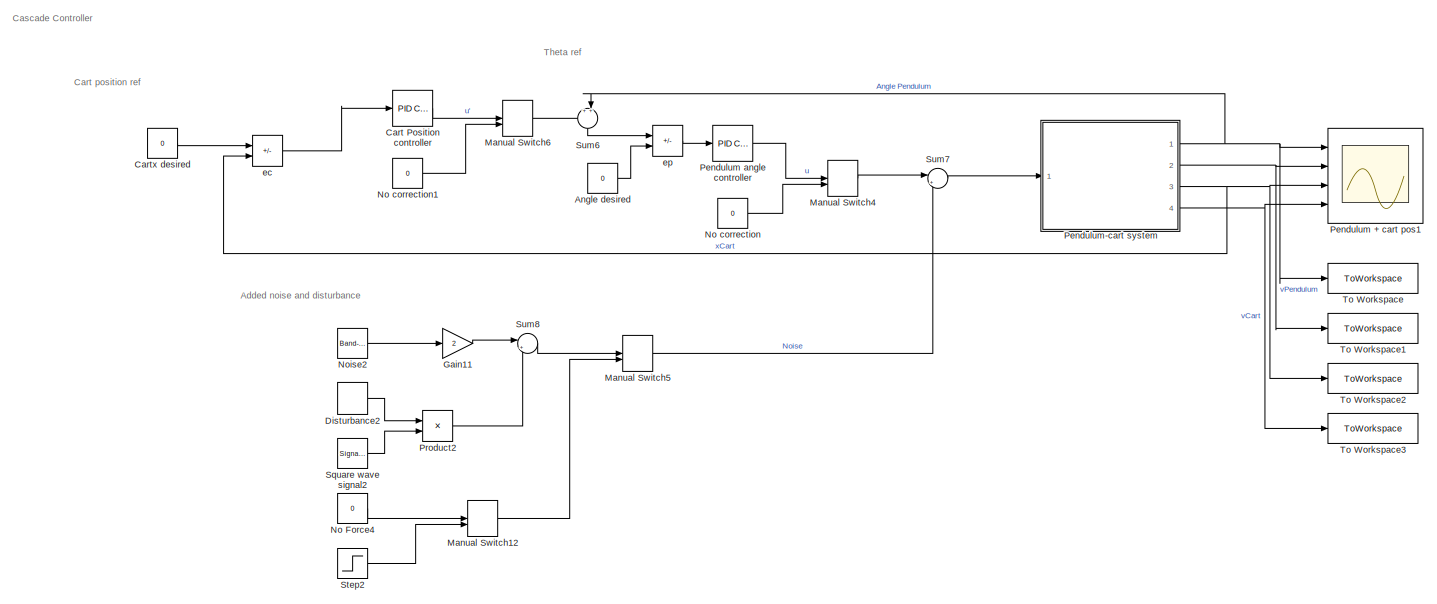
[diagram: root canvas - part 1/3, full width, top band]
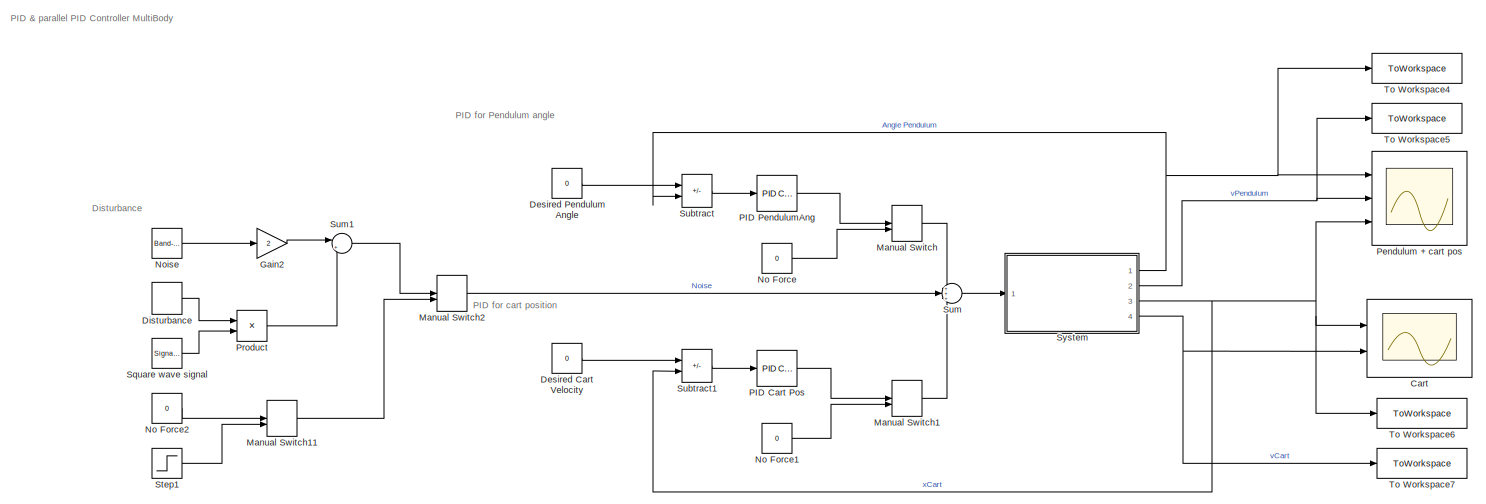
[diagram: root canvas - part 2/3, full width, middle band]
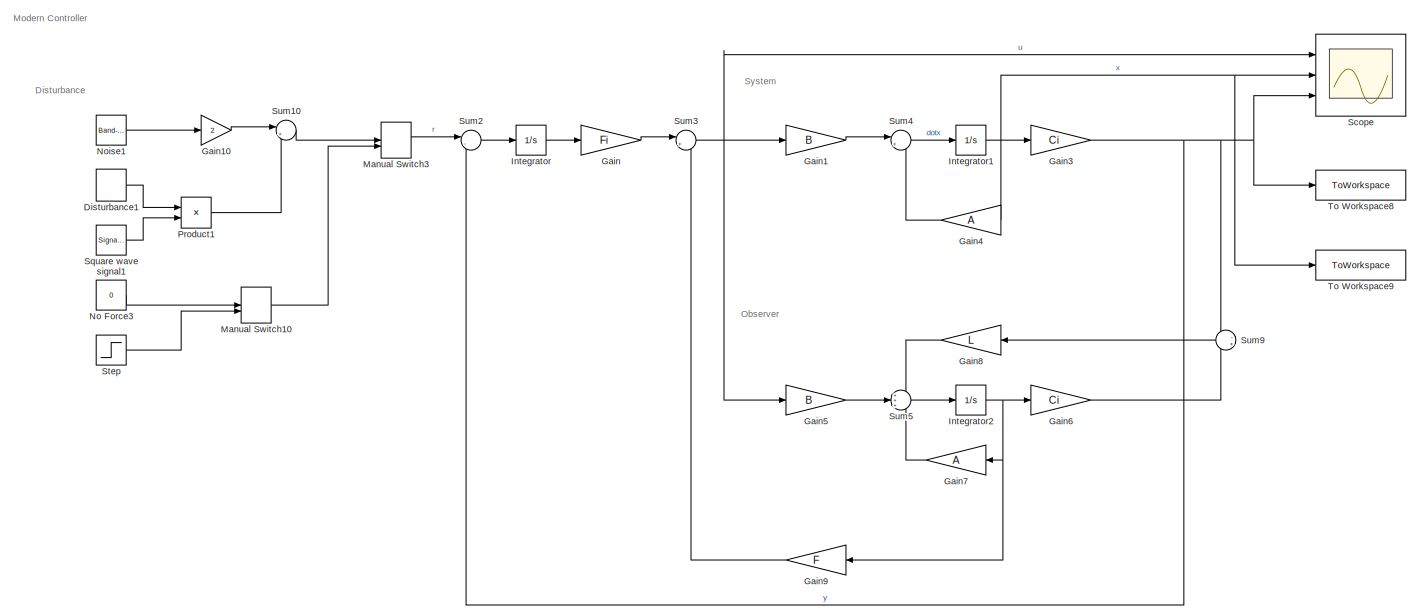
[diagram: root canvas - part 3/3, full width, bottom band]
MODEL slx_d659be072159
KIND model
CONFIG AbsTol = 1e-3
CONFIG EnableMultiTasking = on
CONFIG FixedStep = 0.001
CONFIG MaxStep = auto
CONFIG MinStep = auto
CONFIG RelTol = 1e-3
CONFIG SampleTimeConstraint = Unconstrained
CONFIG SolverName = VariableStepAuto
CONFIG StartTime = 0.0
CONFIG StopTime = 15.0
BLOCK [Constant] Angle desired
  Value = 0
BLOCK [Scope] Cart
  Floating = off
  NumInputPorts = 2
  Ports = [2]
  ScopeSpecificationString = Simulink.scopes.TimeScopeBlockCfg('CurrentConfiguration', extmgr.ConfigurationSet(extmgr.Configuration('Core','General UI',true),extmgr.Configuration('Core','Source UI',true),extmgr.Configuration('Sources','WiredSimulink',true,'DataLoggingVariableName','ScopeData1'),extmgr.Configuration('Visuals','Time Domain',true,'SerializedDisplays',{struct('MinYLimReal','-0.0064','MaxYLimReal','0.00664','YLabe...<+2069ch>
BLOCK [Reference] Cart Position controller  REF=slpidlib/PID Controller
  Ports = [1, 1]
  SourceBlock = slpidlib/PID Controller
  SourceProductBaseCode = SL
  SourceType = PID 1dof
BLOCK [Constant] Cartx desired
  Value = 0
BLOCK [Constant] Desired Cart Velocity
  Value = 0
BLOCK [Constant] Desired Pendulum Angle
  Value = 0
BLOCK [DiscretePulseGenerator] Disturbance
  Amplitude = 10000
  Period = 1
  PhaseDelay = 1
  Ports = [0, 1]
  PulseType = Time based
  PulseWidth = 0.001
BLOCK [DiscretePulseGenerator] Disturbance1
  Amplitude = 10000
  Period = 1
  PhaseDelay = 1
  Ports = [0, 1]
  PulseType = Time based
  PulseWidth = 0.001
BLOCK [DiscretePulseGenerator] Disturbance2
  Amplitude = 10000
  Period = 1
  PhaseDelay = 1
  Ports = [0, 1]
  PulseType = Time based
  PulseWidth = 0.001
BLOCK [Gain] Gain
  Gain = Fi
  Multiplication = Matrix(K*u) (u vector)
BLOCK [Gain] Gain1
  Gain = B
  Multiplication = Matrix(K*u) (u vector)
BLOCK [Gain] Gain10
  Gain = 2
BLOCK [Gain] Gain11
  Gain = 2
BLOCK [Gain] Gain2
  Gain = 2
BLOCK [Gain] Gain3
  Gain = Ci
  Multiplication = Matrix(K*u) (u vector)
BLOCK [Gain] Gain4
  Gain = A
  Multiplication = Matrix(K*u) (u vector)
BLOCK [Gain] Gain5
  Gain = B
  Multiplication = Matrix(K*u) (u vector)
BLOCK [Gain] Gain6
  Gain = Ci
  Multiplication = Matrix(K*u) (u vector)
BLOCK [Gain] Gain7
  Gain = A
  Multiplication = Matrix(K*u) (u vector)
BLOCK [Gain] Gain8
  Gain = L
  Multiplication = Matrix(K*u) (u vector)
BLOCK [Gain] Gain9
  Gain = F
  Multiplication = Matrix(K*u) (u vector)
BLOCK [Integrator] Integrator
  Ports = [1, 1]
BLOCK [Integrator] Integrator1
  InitialCondition = [0;0;pi/64;0]
  Ports = [1, 1]
BLOCK [Integrator] Integrator2
  Ports = [1, 1]
BLOCK [ManualSwitch] Manual Switch
BLOCK [ManualSwitch] Manual Switch1
BLOCK [ManualSwitch] Manual Switch10
  CurrentSetting = 0
BLOCK [ManualSwitch] Manual Switch11
  CurrentSetting = 0
BLOCK [ManualSwitch] Manual Switch12
  CurrentSetting = 0
BLOCK [ManualSwitch] Manual Switch2
BLOCK [ManualSwitch] Manual Switch3
BLOCK [ManualSwitch] Manual Switch4
BLOCK [ManualSwitch] Manual Switch5
BLOCK [ManualSwitch] Manual Switch6
BLOCK [Constant] No Force
  Value = 0
BLOCK [Constant] No Force1
  Value = 0
BLOCK [Constant] No Force2
  Value = 0
BLOCK [Constant] No Force3
  Value = 0
BLOCK [Constant] No Force4
  Value = 0
BLOCK [Constant] No correction
  Value = 0
BLOCK [Constant] No correction1
  Value = 0
BLOCK [Reference] Noise  REF=simulink/Sources/Band-Limited
White Noise
  Ports = [0, 1]
  SourceBlock = simulink/Sources/Band-Limited\nWhite Noise
  SourceProductBaseCode = SL
  SourceType = Band-Limited White Noise.
BLOCK [Reference] Noise1  REF=simulink/Sources/Band-Limited
White Noise
  Ports = [0, 1]
  SourceBlock = simulink/Sources/Band-Limited\nWhite Noise
  SourceProductBaseCode = SL
  SourceType = Band-Limited White Noise.
BLOCK [Reference] Noise2  REF=simulink/Sources/Band-Limited
White Noise
  Ports = [0, 1]
  SourceBlock = simulink/Sources/Band-Limited\nWhite Noise
  SourceProductBaseCode = SL
  SourceType = Band-Limited White Noise.
BLOCK [Reference] PID Cart Pos  REF=slpidlib/PID Controller
  Ports = [1, 1]
  SourceBlock = slpidlib/PID Controller
  SourceProductBaseCode = SL
  SourceType = PID 1dof
BLOCK [Reference] PID PendulumAng  REF=slpidlib/PID Controller
  Ports = [1, 1]
  SourceBlock = slpidlib/PID Controller
  SourceProductBaseCode = SL
  SourceType = PID 1dof
BLOCK [Scope] Pendulum + cart pos
  Floating = off
  NumInputPorts = 3
  Ports = [3]
  ScopeSpecificationString = Simulink.scopes.TimeScopeBlockCfg('CurrentConfiguration', extmgr.ConfigurationSet(extmgr.Configuration('Core','General UI',true),extmgr.Configuration('Core','Source UI',true),extmgr.Configuration('Sources','WiredSimulink',true,'DataLoggingVariableName','ScopeData2'),extmgr.Configuration('Visuals','Time Domain',true,'SerializedDisplays',{struct('MinYLimReal','-0.02425','MaxYLimReal','0.02649','YLab...<+2780ch>
BLOCK [Scope] Pendulum + cart pos1
  Floating = off
  NumInputPorts = 4
  Ports = [4]
  ScopeSpecificationString = Simulink.scopes.TimeScopeBlockCfg('CurrentConfiguration', extmgr.ConfigurationSet(extmgr.Configuration('Core','General UI',true),extmgr.Configuration('Core','Source UI',true),extmgr.Configuration('Sources','WiredSimulink',true,'DataLoggingVariableName','ScopeData1'),extmgr.Configuration('Visuals','Time Domain',true,'SerializedDisplays',{struct('MinYLimReal','-0.01691','MaxYLimReal','0.01799','YLab...<+3404ch>
BLOCK [Reference] Pendulum angle controller  REF=slpidlib/PID Controller
  Ports = [1, 1]
  SourceBlock = slpidlib/PID Controller
  SourceProductBaseCode = SL
  SourceType = PID 1dof
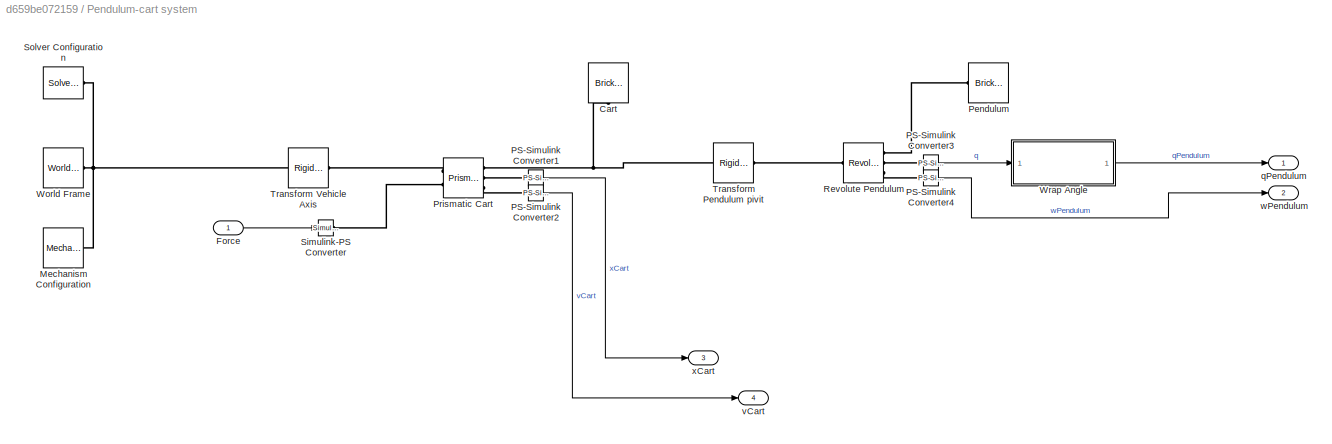
BLOCK [SubSystem] Pendulum-cart system
  Ports = [1, 4]
  RequestExecContextInheritance = off
BLOCK [Reference] Pendulum-cart system/Cart  REF=sm_lib/Body Elements/Brick Solid
  NameLocation = top
  Ports = [0, 0, 0, 0, 0, 0, 1]
  SourceBlock = sm_lib/Body Elements/Brick Solid
  SourceProductBaseCode = MS
  SourceType = Brick Solid
BLOCK [Inport] Pendulum-cart system/Force
BLOCK [Reference] Pendulum-cart system/Mechanism Configuration  REF=sm_lib/Utilities/Mechanism
Configuration
  Ports = [0, 0, 0, 0, 0, 0, 1]
  SourceBlock = sm_lib/Utilities/Mechanism\nConfiguration
  SourceProductBaseCode = MS
  SourceType = Mechanism\nConfiguration
BLOCK [Reference] Pendulum-cart system/PS-Simulink Converter1  REF=nesl_utility/PS-Simulink
Converter
  Ports = [0, 1, 0, 0, 0, 1]
  SourceBlock = nesl_utility/PS-Simulink\nConverter
  SourceProductBaseCode = SS,PW,VE
  SourceType = PS-Simulink\nConverter
BLOCK [Reference] Pendulum-cart system/PS-Simulink Converter2  REF=nesl_utility/PS-Simulink
Converter
  Ports = [0, 1, 0, 0, 0, 1]
  SourceBlock = nesl_utility/PS-Simulink\nConverter
  SourceProductBaseCode = SS,PW,VE
  SourceType = PS-Simulink\nConverter
BLOCK [Reference] Pendulum-cart system/PS-Simulink Converter3  REF=nesl_utility/PS-Simulink
Converter
  Ports = [0, 1, 0, 0, 0, 1]
  SourceBlock = nesl_utility/PS-Simulink\nConverter
  SourceProductBaseCode = SS,PW,VE
  SourceType = PS-Simulink\nConverter
BLOCK [Reference] Pendulum-cart system/PS-Simulink Converter4  REF=nesl_utility/PS-Simulink
Converter
  Ports = [0, 1, 0, 0, 0, 1]
  SourceBlock = nesl_utility/PS-Simulink\nConverter
  SourceProductBaseCode = SS,PW,VE
  SourceType = PS-Simulink\nConverter
BLOCK [Reference] Pendulum-cart system/Pendulum  REF=sm_lib/Body Elements/Brick Solid
  Ports = [0, 0, 0, 0, 0, 1]
  SourceBlock = sm_lib/Body Elements/Brick Solid
  SourceProductBaseCode = MS
  SourceType = Brick Solid
BLOCK [Reference] Pendulum-cart system/Prismatic Cart  REF=sm_lib/Joints/Prismatic
Joint
  Ports = [0, 0, 0, 0, 0, 2, 3]
  SourceBlock = sm_lib/Joints/Prismatic\nJoint
  SourceProductBaseCode = MS
  SourceType = Prismatic\nJoint
BLOCK [Reference] Pendulum-cart system/Revolute Pendulum  REF=sm_lib/Joints/Revolute Joint
  Ports = [0, 0, 0, 0, 0, 1, 3]
  SourceBlock = sm_lib/Joints/Revolute Joint
  SourceProductBaseCode = MS
  SourceType = Revolute Joint
BLOCK [Reference] Pendulum-cart system/Simulink-PS Converter  REF=nesl_utility/Simulink-PS
Converter
  Ports = [1, 0, 0, 0, 0, 0, 1]
  SourceBlock = nesl_utility/Simulink-PS\nConverter
  SourceProductBaseCode = SS,PW,VE
  SourceType = Simulink-PS\nConverter
BLOCK [Reference] Pendulum-cart system/Solver Configuration  REF=nesl_utility/Solver
Configuration
  Ports = [0, 0, 0, 0, 0, 0, 1]
  SourceBlock = nesl_utility/Solver\nConfiguration
  SourceProductBaseCode = SS,PW,VE
  SourceType = Solver\nConfiguration
BLOCK [Reference] Pendulum-cart system/Transform Pendulum pivit  REF=sm_lib/Frames and
Transforms/Rigid
Transform
  Ports = [0, 0, 0, 0, 0, 1, 1]
  SourceBlock = sm_lib/Frames and\nTransforms/Rigid\nTransform
  SourceProductBaseCode = MS
  SourceType = Rigid\nTransform
BLOCK [Reference] Pendulum-cart system/Transform Vehicle Axis  REF=sm_lib/Frames and
Transforms/Rigid
Transform
  Ports = [0, 0, 0, 0, 0, 1, 1]
  SourceBlock = sm_lib/Frames and\nTransforms/Rigid\nTransform
  SourceProductBaseCode = MS
  SourceType = Rigid\nTransform
BLOCK [Reference] Pendulum-cart system/World Frame  REF=sm_lib/Frames and
Transforms/World Frame
  Ports = [0, 0, 0, 0, 0, 0, 1]
  SourceBlock = sm_lib/Frames and\nTransforms/World Frame
  SourceProductBaseCode = MS
  SourceType = World Frame
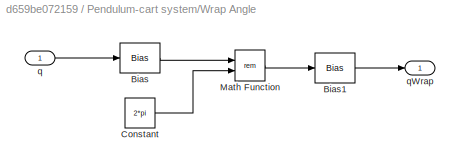
BLOCK [SubSystem] Pendulum-cart system/Wrap Angle
  Ports = [1, 1]
  RequestExecContextInheritance = off
BLOCK [Bias] Pendulum-cart system/Wrap Angle/Bias
  Bias = pi
  SaturateOnIntegerOverflow = off
BLOCK [Bias] Pendulum-cart system/Wrap Angle/Bias1
  Bias = -pi
  SaturateOnIntegerOverflow = off
BLOCK [Constant] Pendulum-cart system/Wrap Angle/Constant
  Value = 2*pi
BLOCK [Math] Pendulum-cart system/Wrap Angle/Math Function
  Operator = rem
  Ports = [2, 1]
BLOCK [Inport] Pendulum-cart system/Wrap Angle/q
BLOCK [Outport] Pendulum-cart system/Wrap Angle/qWrap
BLOCK [Outport] Pendulum-cart system/qPendulum
BLOCK [Outport] Pendulum-cart system/vCart
  Port = 4
BLOCK [Outport] Pendulum-cart system/wPendulum
  Port = 2
BLOCK [Outport] Pendulum-cart system/xCart
  Port = 3
BLOCK [Product] Product
  Ports = [2, 1]
BLOCK [Product] Product1
  Ports = [2, 1]
BLOCK [Product] Product2
  Ports = [2, 1]
BLOCK [Scope] Scope
  Floating = off
  NumInputPorts = 3
  Ports = [3]
  ScopeSpecificationString = Simulink.scopes.TimeScopeBlockCfg('CurrentConfiguration', extmgr.ConfigurationSet(extmgr.Configuration('Core','General UI',true),extmgr.Configuration('Core','Source UI',true),extmgr.Configuration('Sources','WiredSimulink',true,'DataLoggingVariableName','ScopeData1'),extmgr.Configuration('Visuals','Time Domain',true,'SerializedDisplays',{struct('MinYLimReal','-24.426','MaxYLimReal','22.32695','YLab...<+2748ch>
BLOCK [SignalGenerator] Square wave signal
  Frequency = 10
  Ports = [0, 1]
  Units = rad/sec
  WaveForm = square
BLOCK [SignalGenerator] Square wave signal1
  Frequency = 10
  Ports = [0, 1]
  Units = rad/sec
  WaveForm = square
BLOCK [SignalGenerator] Square wave signal2
  Frequency = 10
  Ports = [0, 1]
  Units = rad/sec
  WaveForm = square
BLOCK [Step] Step
  After = 0.1
  SampleTime = 0
BLOCK [Step] Step1
  After = 0.1
  SampleTime = 0
BLOCK [Step] Step2
  After = 0.1
  SampleTime = 0
BLOCK [Sum] Subtract
  IconShape = rectangular
  Inputs = +-
  Ports = [2, 1]
BLOCK [Sum] Subtract1
  IconShape = rectangular
  Inputs = +-
  Ports = [2, 1]
BLOCK [Sum] Sum
  Inputs = +++
  Ports = [3, 1]
BLOCK [Sum] Sum1
  Inputs = |++
  Ports = [2, 1]
BLOCK [Sum] Sum10
  Inputs = |++
  Ports = [2, 1]
BLOCK [Sum] Sum2
  Inputs = |-+
  Ports = [2, 1]
BLOCK [Sum] Sum3
  Inputs = |++
  Ports = [2, 1]
BLOCK [Sum] Sum4
  Inputs = |++
  Ports = [2, 1]
BLOCK [Sum] Sum5
  Inputs = +++
  Ports = [3, 1]
BLOCK [Sum] Sum6
  Inputs = ++|
  NameLocation = left
  Ports = [2, 1]
BLOCK [Sum] Sum7
  Inputs = |++
  Ports = [2, 1]
BLOCK [Sum] Sum8
  Inputs = |++
  Ports = [2, 1]
BLOCK [Sum] Sum9
  Inputs = -+
  Ports = [2, 1]
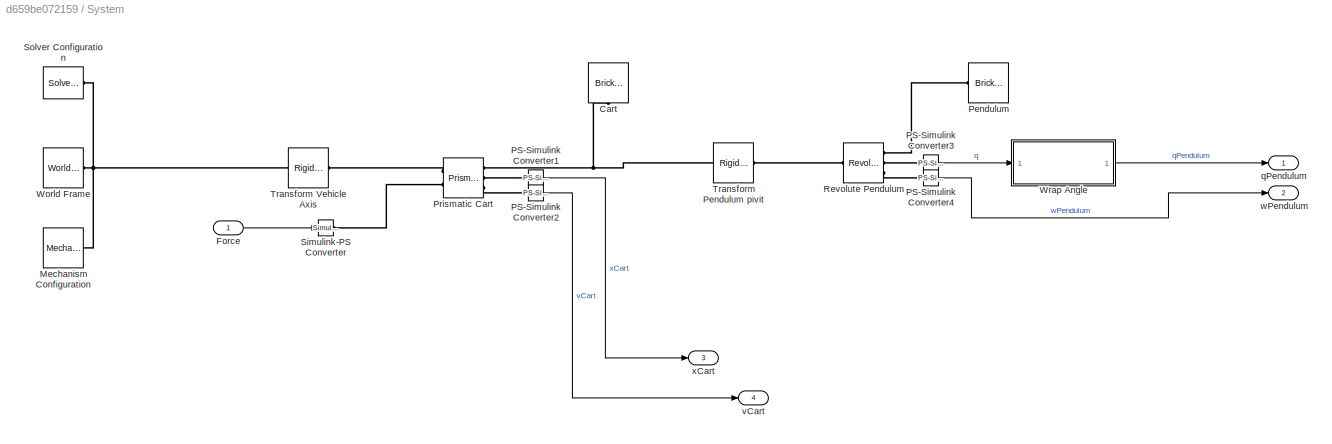
BLOCK [SubSystem] System
  Ports = [1, 4]
  RequestExecContextInheritance = off
BLOCK [Reference] System/Cart  REF=sm_lib/Body Elements/Brick Solid
  NameLocation = top
  Ports = [0, 0, 0, 0, 0, 0, 1]
  SourceBlock = sm_lib/Body Elements/Brick Solid
  SourceProductBaseCode = MS
  SourceType = Brick Solid
BLOCK [Inport] System/Force
BLOCK [Reference] System/Mechanism Configuration  REF=sm_lib/Utilities/Mechanism
Configuration
  Ports = [0, 0, 0, 0, 0, 0, 1]
  SourceBlock = sm_lib/Utilities/Mechanism\nConfiguration
  SourceProductBaseCode = MS
  SourceType = Mechanism\nConfiguration
BLOCK [Reference] System/PS-Simulink Converter1  REF=nesl_utility/PS-Simulink
Converter
  Ports = [0, 1, 0, 0, 0, 1]
  SourceBlock = nesl_utility/PS-Simulink\nConverter
  SourceProductBaseCode = SS,PW,VE
  SourceType = PS-Simulink\nConverter
BLOCK [Reference] System/PS-Simulink Converter2  REF=nesl_utility/PS-Simulink
Converter
  Ports = [0, 1, 0, 0, 0, 1]
  SourceBlock = nesl_utility/PS-Simulink\nConverter
  SourceProductBaseCode = SS,PW,VE
  SourceType = PS-Simulink\nConverter
BLOCK [Reference] System/PS-Simulink Converter3  REF=nesl_utility/PS-Simulink
Converter
  Ports = [0, 1, 0, 0, 0, 1]
  SourceBlock = nesl_utility/PS-Simulink\nConverter
  SourceProductBaseCode = SS,PW,VE
  SourceType = PS-Simulink\nConverter
BLOCK [Reference] System/PS-Simulink Converter4  REF=nesl_utility/PS-Simulink
Converter
  Ports = [0, 1, 0, 0, 0, 1]
  SourceBlock = nesl_utility/PS-Simulink\nConverter
  SourceProductBaseCode = SS,PW,VE
  SourceType = PS-Simulink\nConverter
BLOCK [Reference] System/Pendulum  REF=sm_lib/Body Elements/Brick Solid
  Ports = [0, 0, 0, 0, 0, 1]
  SourceBlock = sm_lib/Body Elements/Brick Solid
  SourceProductBaseCode = MS
  SourceType = Brick Solid
BLOCK [Reference] System/Prismatic Cart  REF=sm_lib/Joints/Prismatic
Joint
  Ports = [0, 0, 0, 0, 0, 2, 3]
  SourceBlock = sm_lib/Joints/Prismatic\nJoint
  SourceProductBaseCode = MS
  SourceType = Prismatic\nJoint
BLOCK [Reference] System/Revolute Pendulum  REF=sm_lib/Joints/Revolute Joint
  Ports = [0, 0, 0, 0, 0, 1, 3]
  SourceBlock = sm_lib/Joints/Revolute Joint
  SourceProductBaseCode = MS
  SourceType = Revolute Joint
BLOCK [Reference] System/Simulink-PS Converter  REF=nesl_utility/Simulink-PS
Converter
  Ports = [1, 0, 0, 0, 0, 0, 1]
  SourceBlock = nesl_utility/Simulink-PS\nConverter
  SourceProductBaseCode = SS,PW,VE
  SourceType = Simulink-PS\nConverter
BLOCK [Reference] System/Solver Configuration  REF=nesl_utility/Solver
Configuration
  Ports = [0, 0, 0, 0, 0, 0, 1]
  SourceBlock = nesl_utility/Solver\nConfiguration
  SourceProductBaseCode = SS,PW,VE
  SourceType = Solver\nConfiguration
BLOCK [Reference] System/Transform Pendulum pivit  REF=sm_lib/Frames and
Transforms/Rigid
Transform
  Ports = [0, 0, 0, 0, 0, 1, 1]
  SourceBlock = sm_lib/Frames and\nTransforms/Rigid\nTransform
  SourceProductBaseCode = MS
  SourceType = Rigid\nTransform
BLOCK [Reference] System/Transform Vehicle Axis  REF=sm_lib/Frames and
Transforms/Rigid
Transform
  Ports = [0, 0, 0, 0, 0, 1, 1]
  SourceBlock = sm_lib/Frames and\nTransforms/Rigid\nTransform
  SourceProductBaseCode = MS
  SourceType = Rigid\nTransform
BLOCK [Reference] System/World Frame  REF=sm_lib/Frames and
Transforms/World Frame
  Ports = [0, 0, 0, 0, 0, 0, 1]
  SourceBlock = sm_lib/Frames and\nTransforms/World Frame
  SourceProductBaseCode = MS
  SourceType = World Frame
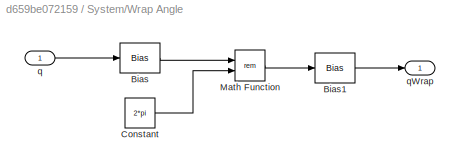
BLOCK [SubSystem] System/Wrap Angle
  Ports = [1, 1]
  RequestExecContextInheritance = off
BLOCK [Bias] System/Wrap Angle/Bias
  Bias = pi
  SaturateOnIntegerOverflow = off
BLOCK [Bias] System/Wrap Angle/Bias1
  Bias = -pi
  SaturateOnIntegerOverflow = off
BLOCK [Constant] System/Wrap Angle/Constant
  Value = 2*pi
BLOCK [Math] System/Wrap Angle/Math Function
  Operator = rem
  Ports = [2, 1]
BLOCK [Inport] System/Wrap Angle/q
BLOCK [Outport] System/Wrap Angle/qWrap
BLOCK [Outport] System/qPendulum
BLOCK [Outport] System/vCart
  Port = 4
BLOCK [Outport] System/wPendulum
  Port = 2
BLOCK [Outport] System/xCart
  Port = 3
BLOCK [ToWorkspace] To Workspace
  FixptAsFi = on
  MaxDataPoints = inf
  Ports = [1]
  SampleTime = -1
  SaveFormat = Timeseries
  VariableName = qcasc
BLOCK [ToWorkspace] To Workspace1
  FixptAsFi = on
  MaxDataPoints = inf
  Ports = [1]
  SampleTime = -1
  SaveFormat = Timeseries
  VariableName = wcasc
BLOCK [ToWorkspace] To Workspace2
  FixptAsFi = on
  MaxDataPoints = inf
  Ports = [1]
  SampleTime = -1
  SaveFormat = Timeseries
  VariableName = xcasc
BLOCK [ToWorkspace] To Workspace3
  FixptAsFi = on
  MaxDataPoints = inf
  Ports = [1]
  SampleTime = -1
  SaveFormat = Timeseries
  VariableName = vcasc
BLOCK [ToWorkspace] To Workspace4
  FixptAsFi = on
  MaxDataPoints = inf
  Ports = [1]
  SampleTime = -1
  SaveFormat = Timeseries
  VariableName = PIDPenAng
BLOCK [ToWorkspace] To Workspace5
  FixptAsFi = on
  MaxDataPoints = inf
  Ports = [1]
  SampleTime = -1
  SaveFormat = Timeseries
  VariableName = PIDPenVel
BLOCK [ToWorkspace] To Workspace6
  FixptAsFi = on
  MaxDataPoints = inf
  Ports = [1]
  SampleTime = -1
  SaveFormat = Timeseries
  VariableName = PIDCartPos
BLOCK [ToWorkspace] To Workspace7
  FixptAsFi = on
  MaxDataPoints = inf
  Ports = [1]
  SampleTime = -1
  SaveFormat = Timeseries
  VariableName = PIDCartVel
BLOCK [ToWorkspace] To Workspace8
  FixptAsFi = on
  MaxDataPoints = inf
  Ports = [1]
  SampleTime = -1
  SaveFormat = Timeseries
  VariableName = ModernControlPenAng
BLOCK [ToWorkspace] To Workspace9
  FixptAsFi = on
  MaxDataPoints = inf
  Ports = [1]
  SampleTime = -1
  SaveFormat = Timeseries
  VariableName = ModernCntrStates
BLOCK [Sum] ec
  IconShape = rectangular
  Inputs = +-
  Ports = [2, 1]
BLOCK [Sum] ep
  IconShape = rectangular
  Inputs = +-
  Ports = [2, 1]
ANNOTATION (root): Added noise and disturbance
ANNOTATION (root): Cart position ref
ANNOTATION (root): Cascade Controller
ANNOTATION (root): Disturbance
ANNOTATION (root): Modern Controller
ANNOTATION (root): Observer
ANNOTATION (root): PID & parallel PID Controller MultiBody
ANNOTATION (root): PID for Pendulum angle
ANNOTATION (root): PID for cart position
ANNOTATION (root): System
ANNOTATION (root): Theta ref
LINE Angle desired:1 -> ep:2
LINE Cart Position controller:1 -> Manual Switch6:1
LINE Cartx desired:1 -> ec:1
LINE Desired Cart Velocity:1 -> Subtract1:1
LINE Desired Pendulum Angle:1 -> Subtract:1
LINE Disturbance1:1 -> Product1:1
LINE Disturbance2:1 -> Product2:1
LINE Disturbance:1 -> Product:1
LINE Gain10:1 -> Sum10:1
LINE Gain11:1 -> Sum8:1
LINE Gain1:1 -> Sum4:1
LINE Gain2:1 -> Sum1:1
NET Gain3:1 -> Scope:3, Sum2:2, Sum9:1, To Workspace8:1
LINE Gain4:1 -> Sum4:2
LINE Gain5:1 -> Sum5:2
LINE Gain6:1 -> Sum9:2
LINE Gain7:1 -> Sum5:3
LINE Gain8:1 -> Sum5:1
LINE Gain9:1 -> Sum3:2
LINE Gain:1 -> Sum3:1
NET Integrator1:1 -> Gain3:1, Gain4:1, Scope:2, To Workspace9:1
NET Integrator2:1 -> Gain6:1, Gain7:1, Gain9:1
LINE Integrator:1 -> Gain:1
LINE Manual Switch10:1 -> Manual Switch3:2
LINE Manual Switch11:1 -> Manual Switch2:2
LINE Manual Switch12:1 -> Manual Switch5:2
LINE Manual Switch1:1 -> Sum:3
LINE Manual Switch2:1 -> Sum:2
LINE Manual Switch3:1 -> Sum2:1
LINE Manual Switch4:1 -> Sum7:1
LINE Manual Switch5:1 -> Sum7:2
LINE Manual Switch6:1 -> Sum6:1
LINE Manual Switch:1 -> Sum:1
LINE No Force1:1 -> Manual Switch1:2
LINE No Force2:1 -> Manual Switch11:1
LINE No Force3:1 -> Manual Switch10:1
LINE No Force4:1 -> Manual Switch12:1
LINE No Force:1 -> Manual Switch:2
LINE No correction1:1 -> Manual Switch6:2
LINE No correction:1 -> Manual Switch4:2
LINE Noise1:1 -> Gain10:1
LINE Noise2:1 -> Gain11:1
LINE Noise:1 -> Gain2:1
LINE PID Cart Pos:1 -> Manual Switch1:1
LINE PID PendulumAng:1 -> Manual Switch:1
LINE Pendulum angle controller:1 -> Manual Switch4:1
LINE Pendulum-cart system/Force:1 -> Pendulum-cart system/Simulink-PS Converter:1
LINE Pendulum-cart system/PS-Simulink Converter1:1 -> Pendulum-cart system/xCart:1
LINE Pendulum-cart system/PS-Simulink Converter2:1 -> Pendulum-cart system/vCart:1
LINE Pendulum-cart system/PS-Simulink Converter3:1 -> Pendulum-cart system/Wrap Angle:1
LINE Pendulum-cart system/PS-Simulink Converter4:1 -> Pendulum-cart system/wPendulum:1
LINE Pendulum-cart system/Wrap Angle/Bias1:1 -> Pendulum-cart system/Wrap Angle/qWrap:1
LINE Pendulum-cart system/Wrap Angle/Bias:1 -> Pendulum-cart system/Wrap Angle/Math Function:1
LINE Pendulum-cart system/Wrap Angle/Constant:1 -> Pendulum-cart system/Wrap Angle/Math Function:2
LINE Pendulum-cart system/Wrap Angle/Math Function:1 -> Pendulum-cart system/Wrap Angle/Bias1:1
LINE Pendulum-cart system/Wrap Angle/q:1 -> Pendulum-cart system/Wrap Angle/Bias:1
LINE Pendulum-cart system/Wrap Angle:1 -> Pendulum-cart system/qPendulum:1
NET Pendulum-cart system:1 -> Pendulum + cart pos1:1, Sum6:2, To Workspace:1
NET Pendulum-cart system:2 -> Pendulum + cart pos1:2, To Workspace1:1
NET Pendulum-cart system:3 -> Pendulum + cart pos1:3, To Workspace2:1, ec:2
NET Pendulum-cart system:4 -> Pendulum + cart pos1:4, To Workspace3:1
LINE Product1:1 -> Sum10:2
LINE Product2:1 -> Sum8:2
LINE Product:1 -> Sum1:2
LINE Square wave signal1:1 -> Product1:2
LINE Square wave signal2:1 -> Product2:2
LINE Square wave signal:1 -> Product:2
LINE Step1:1 -> Manual Switch11:2
LINE Step2:1 -> Manual Switch12:2
LINE Step:1 -> Manual Switch10:2
LINE Subtract1:1 -> PID Cart Pos:1
LINE Subtract:1 -> PID PendulumAng:1
LINE Sum10:1 -> Manual Switch3:1
LINE Sum1:1 -> Manual Switch2:1
LINE Sum2:1 -> Integrator:1
NET Sum3:1 -> Gain1:1, Gain5:1, Scope:1
LINE Sum4:1 -> Integrator1:1
LINE Sum5:1 -> Integrator2:1
LINE Sum6:1 -> ep:1
LINE Sum7:1 -> Pendulum-cart system:1
LINE Sum8:1 -> Manual Switch5:1
LINE Sum9:1 -> Gain8:1
LINE Sum:1 -> System:1
LINE System/Force:1 -> System/Simulink-PS Converter:1
LINE System/PS-Simulink Converter1:1 -> System/xCart:1
LINE System/PS-Simulink Converter2:1 -> System/vCart:1
LINE System/PS-Simulink Converter3:1 -> System/Wrap Angle:1
LINE System/PS-Simulink Converter4:1 -> System/wPendulum:1
LINE System/Wrap Angle/Bias1:1 -> System/Wrap Angle/qWrap:1
LINE System/Wrap Angle/Bias:1 -> System/Wrap Angle/Math Function:1
LINE System/Wrap Angle/Constant:1 -> System/Wrap Angle/Math Function:2
LINE System/Wrap Angle/Math Function:1 -> System/Wrap Angle/Bias1:1
LINE System/Wrap Angle/q:1 -> System/Wrap Angle/Bias:1
LINE System/Wrap Angle:1 -> System/qPendulum:1
NET System:1 -> Pendulum + cart pos:1, Subtract:2, To Workspace4:1
NET System:2 -> Pendulum + cart pos:2, To Workspace5:1
NET System:3 -> Cart:1, Pendulum + cart pos:3, Subtract1:2, To Workspace6:1
NET System:4 -> Cart:2, To Workspace7:1
LINE ec:1 -> Cart Position controller:1
LINE ep:1 -> Pendulum angle controller:1
PNET net1: Pendulum-cart system/Cart:RConn1 -- Pendulum-cart system/Prismatic Cart:RConn1 -- Pendulum-cart system/Transform Pendulum pivit:LConn1
PNET net2: Pendulum-cart system/Mechanism Configuration:RConn1 -- Pendulum-cart system/Solver Configuration:RConn1 -- Pendulum-cart system/Transform Vehicle Axis:LConn1 -- Pendulum-cart system/World Frame:RConn1
PLINE Pendulum-cart system/PS-Simulink Converter1:LConn1 -- Pendulum-cart system/Prismatic Cart:RConn2
PLINE Pendulum-cart system/PS-Simulink Converter2:LConn1 -- Pendulum-cart system/Prismatic Cart:RConn3
PLINE Pendulum-cart system/PS-Simulink Converter3:LConn1 -- Pendulum-cart system/Revolute Pendulum:RConn2
PLINE Pendulum-cart system/PS-Simulink Converter4:LConn1 -- Pendulum-cart system/Revolute Pendulum:RConn3
PLINE Pendulum-cart system/Pendulum:LConn1 -- Pendulum-cart system/Revolute Pendulum:RConn1
PLINE Pendulum-cart system/Prismatic Cart:LConn1 -- Pendulum-cart system/Transform Vehicle Axis:RConn1
PLINE Pendulum-cart system/Prismatic Cart:LConn2 -- Pendulum-cart system/Simulink-PS Converter:RConn1
PLINE Pendulum-cart system/Revolute Pendulum:LConn1 -- Pendulum-cart system/Transform Pendulum pivit:RConn1
PNET net3: System/Cart:RConn1 -- System/Prismatic Cart:RConn1 -- System/Transform Pendulum pivit:LConn1
PNET net4: System/Mechanism Configuration:RConn1 -- System/Solver Configuration:RConn1 -- System/Transform Vehicle Axis:LConn1 -- System/World Frame:RConn1
PLINE System/PS-Simulink Converter1:LConn1 -- System/Prismatic Cart:RConn2
PLINE System/PS-Simulink Converter2:LConn1 -- System/Prismatic Cart:RConn3
PLINE System/PS-Simulink Converter3:LConn1 -- System/Revolute Pendulum:RConn2
PLINE System/PS-Simulink Converter4:LConn1 -- System/Revolute Pendulum:RConn3
PLINE System/Pendulum:LConn1 -- System/Revolute Pendulum:RConn1
PLINE System/Prismatic Cart:LConn1 -- System/Transform Vehicle Axis:RConn1
PLINE System/Prismatic Cart:LConn2 -- System/Simulink-PS Converter:RConn1
PLINE System/Revolute Pendulum:LConn1 -- System/Transform Pendulum pivit:RConn1
note: NET lines group one-source signal fan-out (src -> all destinations, sorted); 1:1 wires keep LINE; PNET lines group multi-terminal physical nets as a canonical sorted terminal list (undirected conserving connections); 2-terminal nets keep the pairwise PLINE form
